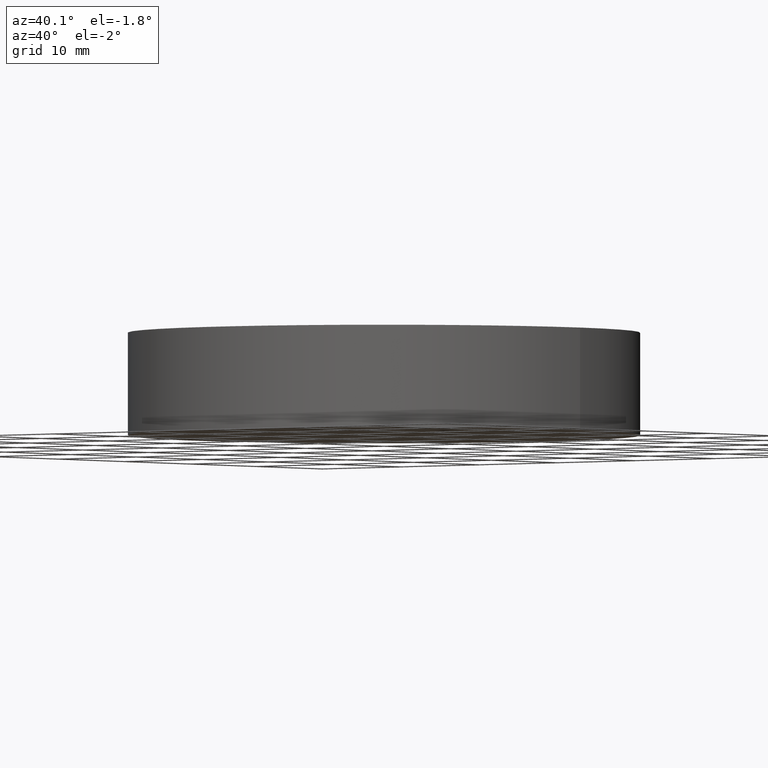
[diagram: clean part render]
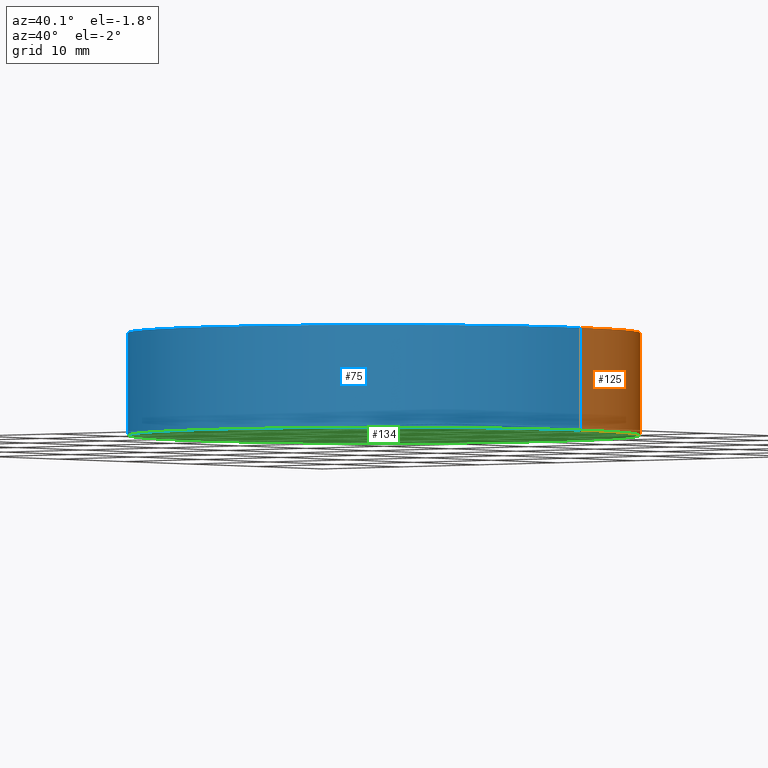
[diagram: same view with three faces highlighted in distinct colors, each labeled with its STEP entity id]
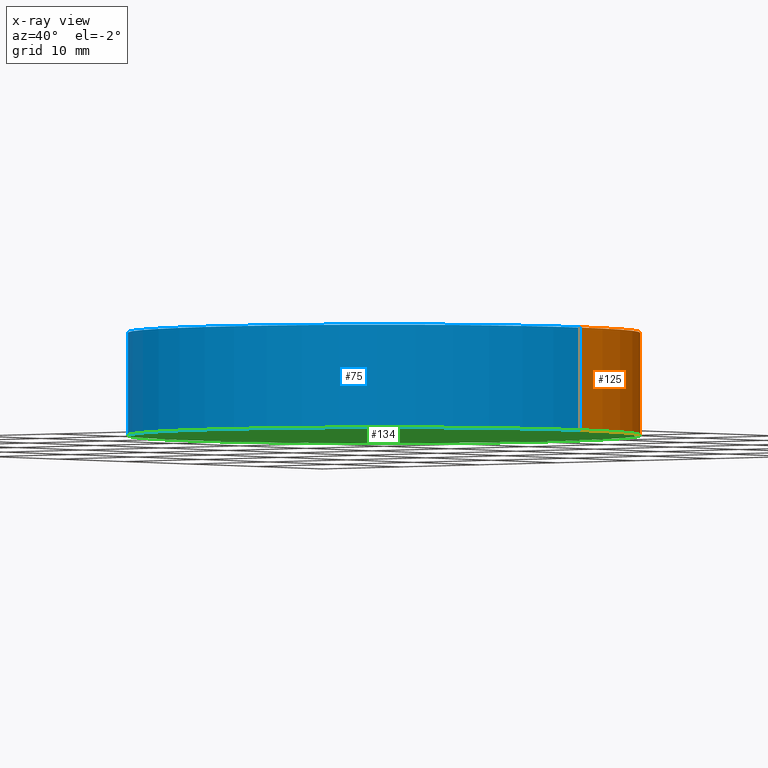
[diagram: x-ray of the same camera — body ghosted, the three highlighted faces saturated]
A machine part, auxiliary view with three faces highlighted in distinct colors.
The next image is the same camera in x-ray (body ghosted, the three faces saturated) — at least one of them is partly hidden behind the body in this view.
Their STEP definitions:

[orange] entity #125 — the highlighted cylindrical surface (partial cylindrical patch) has radius 25 mm, axis along (-0, -0, -1).
#3 = VERTEX_POINT ( 'NONE', #129 ) ;
#5 = CIRCLE ( 'NONE', #108, 25.00000000000000000 ) ;
#14 = CYLINDRICAL_SURFACE ( 'NONE', #86, 25.00000000000000000 ) ;
#17 = DIRECTION ( 'NONE',  ( 1.000000000000000000, 0.0000000000000000000, 0.0000000000000000000 ) ) ;
#18 = DIRECTION ( 'NONE',  ( 0.0000000000000000000, 0.0000000000000000000, 1.000000000000000000 ) ) ;
#19 = CARTESIAN_POINT ( 'NONE',  ( 0.0000000000000000000, 0.0000000000000000000, 0.0000000000000000000 ) ) ;
#20 = DIRECTION ( 'NONE',  ( -1.000000000000000000, 0.0000000000000000000, 0.0000000000000000000 ) ) ;
#23 = LINE ( 'NONE', #126, #32 ) ;
#25 = CARTESIAN_POINT ( 'NONE',  ( 0.0000000000000000000, 0.0000000000000000000, 10.00000000000000000 ) ) ;
#28 = ORIENTED_EDGE ( 'NONE', *, *, #113, .F. ) ;
#32 = VECTOR ( 'NONE', #49, 1000.000000000000000 ) ;
#34 = DIRECTION ( 'NONE',  ( 0.0000000000000000000, 0.0000000000000000000, 1.000000000000000000 ) ) ;
#40 = DIRECTION ( 'NONE',  ( 1.000000000000000000, 0.0000000000000000000, 0.0000000000000000000 ) ) ;
#41 = CARTESIAN_POINT ( 'NONE',  ( 0.0000000000000000000, 0.0000000000000000000, 10.00000000000000000 ) ) ;
#43 = VECTOR ( 'NONE', #94, 1000.000000000000000 ) ;
#45 = ORIENTED_EDGE ( 'NONE', *, *, #103, .F. ) ;
#47 = ORIENTED_EDGE ( 'NONE', *, *, #117, .T. ) ;
#49 = DIRECTION ( 'NONE',  ( -0.0000000000000000000, -0.0000000000000000000, -1.000000000000000000 ) ) ;
#51 = VERTEX_POINT ( 'NONE', #132 ) ;
#53 = AXIS2_PLACEMENT_3D ( 'NONE', #41, #34, #40 ) ;
#60 = EDGE_CURVE ( 'NONE', #3, #138, #67, .T. ) ;
#67 = LINE ( 'NONE', #83, #43 ) ;
#69 = CARTESIAN_POINT ( 'NONE',  ( 25.00000000000000000, 3.061616997868383000E-015, 0.0000000000000000000 ) ) ;
#71 = VERTEX_POINT ( 'NONE', #93 ) ;
#79 = DIRECTION ( 'NONE',  ( -0.0000000000000000000, -0.0000000000000000000, -1.000000000000000000 ) ) ;
#83 = CARTESIAN_POINT ( 'NONE',  ( 25.00000000000000000, 3.061616997868383000E-015, 10.00000000000000000 ) ) ;
#86 = AXIS2_PLACEMENT_3D ( 'NONE', #25, #79, #20 ) ;
#92 = ORIENTED_EDGE ( 'NONE', *, *, #60, .T. ) ;
#93 = CARTESIAN_POINT ( 'NONE',  ( -25.00000000000000000, 0.0000000000000000000, 10.00000000000000000 ) ) ;
#94 = DIRECTION ( 'NONE',  ( -0.0000000000000000000, -0.0000000000000000000, -1.000000000000000000 ) ) ;
#103 = EDGE_CURVE ( 'NONE', #3, #71, #115, .T. ) ;
#108 = AXIS2_PLACEMENT_3D ( 'NONE', #19, #18, #17 ) ;
#113 = EDGE_CURVE ( 'NONE', #71, #51, #23, .T. ) ;
#115 = CIRCLE ( 'NONE', #53, 25.00000000000000000 ) ;
#117 = EDGE_CURVE ( 'NONE', #138, #51, #5, .T. ) ;
#125 = ADVANCED_FACE ( 'NONE', ( #131 ), #14, .T. ) ;
#126 = CARTESIAN_POINT ( 'NONE',  ( -25.00000000000000000, 0.0000000000000000000, 10.00000000000000000 ) ) ;
#129 = CARTESIAN_POINT ( 'NONE',  ( 25.00000000000000000, 3.061616997868383000E-015, 10.00000000000000000 ) ) ;
#131 = FACE_OUTER_BOUND ( 'NONE', #135, .T. ) ;
#132 = CARTESIAN_POINT ( 'NONE',  ( -25.00000000000000000, 0.0000000000000000000, 0.0000000000000000000 ) ) ;
#135 = EDGE_LOOP ( 'NONE', ( #45, #92, #47, #28 ) ) ;
#138 = VERTEX_POINT ( 'NONE', #69 ) ;

[blue] entity #75 — the highlighted cylindrical surface (partial cylindrical patch) has radius 25 mm, axis along (-0, -0, -1).
#3 = VERTEX_POINT ( 'NONE', #129 ) ;
#4 = EDGE_CURVE ( 'NONE', #71, #3, #39, .T. ) ;
#12 = ORIENTED_EDGE ( 'NONE', *, *, #113, .T. ) ;
#23 = LINE ( 'NONE', #126, #32 ) ;
#24 = FACE_OUTER_BOUND ( 'NONE', #82, .T. ) ;
#27 = AXIS2_PLACEMENT_3D ( 'NONE', #48, #123, #121 ) ;
#32 = VECTOR ( 'NONE', #49, 1000.000000000000000 ) ;
#39 = CIRCLE ( 'NONE', #27, 25.00000000000000000 ) ;
#43 = VECTOR ( 'NONE', #94, 1000.000000000000000 ) ;
#48 = CARTESIAN_POINT ( 'NONE',  ( 0.0000000000000000000, 0.0000000000000000000, 10.00000000000000000 ) ) ;
#49 = DIRECTION ( 'NONE',  ( -0.0000000000000000000, -0.0000000000000000000, -1.000000000000000000 ) ) ;
#51 = VERTEX_POINT ( 'NONE', #132 ) ;
#54 = ORIENTED_EDGE ( 'NONE', *, *, #4, .F. ) ;
#59 = ORIENTED_EDGE ( 'NONE', *, *, #60, .F. ) ;
#60 = EDGE_CURVE ( 'NONE', #3, #138, #67, .T. ) ;
#62 = EDGE_CURVE ( 'NONE', #51, #138, #124, .T. ) ;
#67 = LINE ( 'NONE', #83, #43 ) ;
#69 = CARTESIAN_POINT ( 'NONE',  ( 25.00000000000000000, 3.061616997868383000E-015, 0.0000000000000000000 ) ) ;
#71 = VERTEX_POINT ( 'NONE', #93 ) ;
#74 = AXIS2_PLACEMENT_3D ( 'NONE', #87, #84, #81 ) ;
#75 = ADVANCED_FACE ( 'NONE', ( #24 ), #77, .T. ) ;
#77 = CYLINDRICAL_SURFACE ( 'NONE', #116, 25.00000000000000000 ) ;
#81 = DIRECTION ( 'NONE',  ( 1.000000000000000000, 0.0000000000000000000, 0.0000000000000000000 ) ) ;
#82 = EDGE_LOOP ( 'NONE', ( #59, #54, #12, #109 ) ) ;
#83 = CARTESIAN_POINT ( 'NONE',  ( 25.00000000000000000, 3.061616997868383000E-015, 10.00000000000000000 ) ) ;
#84 = DIRECTION ( 'NONE',  ( 0.0000000000000000000, 0.0000000000000000000, 1.000000000000000000 ) ) ;
#87 = CARTESIAN_POINT ( 'NONE',  ( 0.0000000000000000000, 0.0000000000000000000, 0.0000000000000000000 ) ) ;
#89 = DIRECTION ( 'NONE',  ( -1.000000000000000000, 0.0000000000000000000, 0.0000000000000000000 ) ) ;
#91 = CARTESIAN_POINT ( 'NONE',  ( 0.0000000000000000000, 0.0000000000000000000, 10.00000000000000000 ) ) ;
#93 = CARTESIAN_POINT ( 'NONE',  ( -25.00000000000000000, 0.0000000000000000000, 10.00000000000000000 ) ) ;
#94 = DIRECTION ( 'NONE',  ( -0.0000000000000000000, -0.0000000000000000000, -1.000000000000000000 ) ) ;
#109 = ORIENTED_EDGE ( 'NONE', *, *, #62, .T. ) ;
#111 = DIRECTION ( 'NONE',  ( -0.0000000000000000000, -0.0000000000000000000, -1.000000000000000000 ) ) ;
#113 = EDGE_CURVE ( 'NONE', #71, #51, #23, .T. ) ;
#116 = AXIS2_PLACEMENT_3D ( 'NONE', #91, #111, #89 ) ;
#121 = DIRECTION ( 'NONE',  ( 1.000000000000000000, 0.0000000000000000000, 0.0000000000000000000 ) ) ;
#123 = DIRECTION ( 'NONE',  ( 0.0000000000000000000, 0.0000000000000000000, 1.000000000000000000 ) ) ;
#124 = CIRCLE ( 'NONE', #74, 25.00000000000000000 ) ;
#126 = CARTESIAN_POINT ( 'NONE',  ( -25.00000000000000000, 0.0000000000000000000, 10.00000000000000000 ) ) ;
#129 = CARTESIAN_POINT ( 'NONE',  ( 25.00000000000000000, 3.061616997868383000E-015, 10.00000000000000000 ) ) ;
#132 = CARTESIAN_POINT ( 'NONE',  ( -25.00000000000000000, 0.0000000000000000000, 0.0000000000000000000 ) ) ;
#138 = VERTEX_POINT ( 'NONE', #69 ) ;

[green] entity #134 — the highlighted planar face has unit normal (0, 0, 1).
#1 = DIRECTION ( 'NONE',  ( 1.000000000000000000, 0.0000000000000000000, -0.0000000000000000000 ) ) ;
#5 = CIRCLE ( 'NONE', #108, 25.00000000000000000 ) ;
#7 = DIRECTION ( 'NONE',  ( 0.0000000000000000000, 0.0000000000000000000, 1.000000000000000000 ) ) ;
#10 = PLANE ( 'NONE',  #110 ) ;
#17 = DIRECTION ( 'NONE',  ( 1.000000000000000000, 0.0000000000000000000, 0.0000000000000000000 ) ) ;
#18 = DIRECTION ( 'NONE',  ( 0.0000000000000000000, 0.0000000000000000000, 1.000000000000000000 ) ) ;
#19 = CARTESIAN_POINT ( 'NONE',  ( 0.0000000000000000000, 0.0000000000000000000, 0.0000000000000000000 ) ) ;
#35 = ORIENTED_EDGE ( 'NONE', *, *, #117, .F. ) ;
#37 = FACE_OUTER_BOUND ( 'NONE', #73, .T. ) ;
#51 = VERTEX_POINT ( 'NONE', #132 ) ;
#62 = EDGE_CURVE ( 'NONE', #51, #138, #124, .T. ) ;
#69 = CARTESIAN_POINT ( 'NONE',  ( 25.00000000000000000, 3.061616997868383000E-015, 0.0000000000000000000 ) ) ;
#73 = EDGE_LOOP ( 'NONE', ( #107, #35 ) ) ;
#74 = AXIS2_PLACEMENT_3D ( 'NONE', #87, #84, #81 ) ;
#81 = DIRECTION ( 'NONE',  ( 1.000000000000000000, 0.0000000000000000000, 0.0000000000000000000 ) ) ;
#84 = DIRECTION ( 'NONE',  ( 0.0000000000000000000, 0.0000000000000000000, 1.000000000000000000 ) ) ;
#87 = CARTESIAN_POINT ( 'NONE',  ( 0.0000000000000000000, 0.0000000000000000000, 0.0000000000000000000 ) ) ;
#104 = CARTESIAN_POINT ( 'NONE',  ( 0.0000000000000000000, 0.0000000000000000000, 0.0000000000000000000 ) ) ;
#107 = ORIENTED_EDGE ( 'NONE', *, *, #62, .F. ) ;
#108 = AXIS2_PLACEMENT_3D ( 'NONE', #19, #18, #17 ) ;
#110 = AXIS2_PLACEMENT_3D ( 'NONE', #104, #7, #1 ) ;
#117 = EDGE_CURVE ( 'NONE', #138, #51, #5, .T. ) ;
#124 = CIRCLE ( 'NONE', #74, 25.00000000000000000 ) ;
#132 = CARTESIAN_POINT ( 'NONE',  ( -25.00000000000000000, 0.0000000000000000000, 0.0000000000000000000 ) ) ;
#134 = ADVANCED_FACE ( 'NONE', ( #37 ), #10, .F. ) ;
#138 = VERTEX_POINT ( 'NONE', #69 ) ;